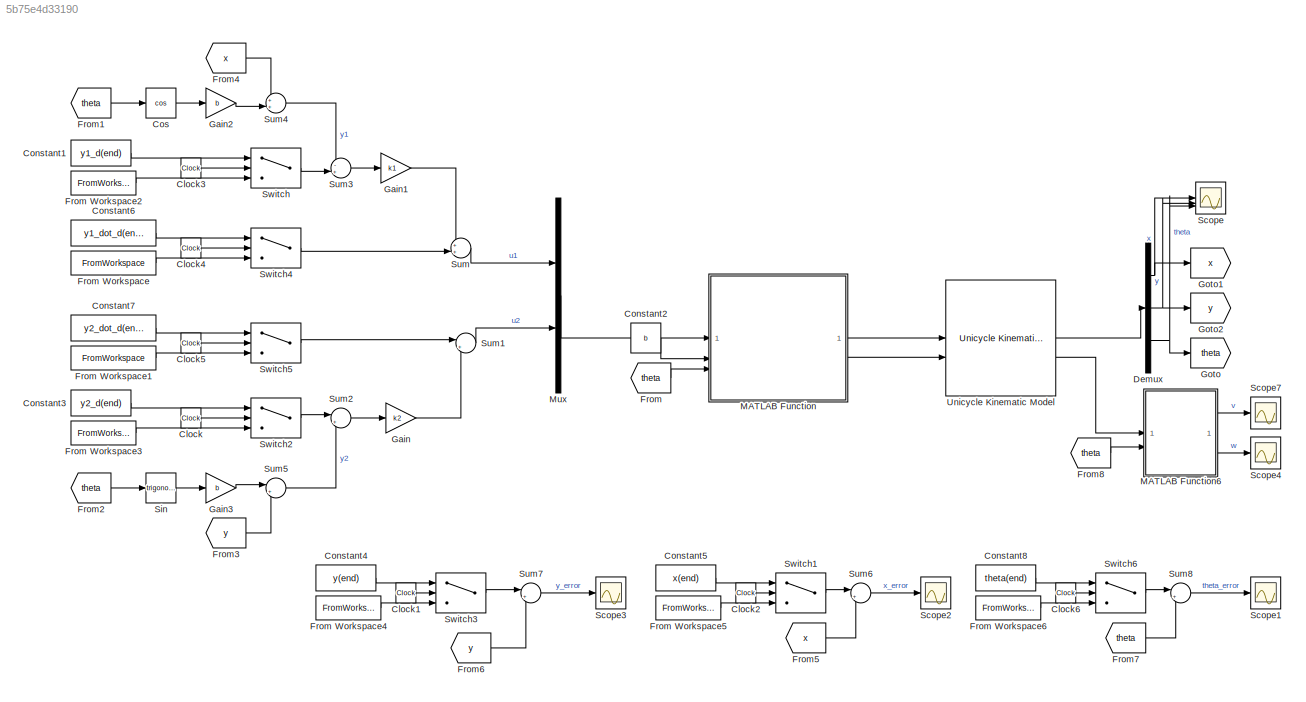
MODEL slx_5b75e4d33190
KIND model
CONFIG AbsTol = auto
CONFIG EnableMultiTasking = off
CONFIG FixedStep = 1/fs
CONFIG MaxStep = auto
CONFIG MinStep = auto
CONFIG RelTol = 1e-3
CONFIG SampleTimeConstraint = Unconstrained
CONFIG SolverName = FixedStepAuto
CONFIG StartTime = 0.0
CONFIG StopTime = 20
BLOCK [Clock] Clock
BLOCK [Clock] Clock1
BLOCK [Clock] Clock2
BLOCK [Clock] Clock3
BLOCK [Clock] Clock4
BLOCK [Clock] Clock5
BLOCK [Clock] Clock6
BLOCK [Constant] Constant1
  Value = y1_d(end)
BLOCK [Constant] Constant2
  Value = b
BLOCK [Constant] Constant3
  Value = y2_d(end)
BLOCK [Constant] Constant4
  Value = y(end)
BLOCK [Constant] Constant5
  Value = x(end)
BLOCK [Constant] Constant6
  Value = y1_dot_d(end)
BLOCK [Constant] Constant7
  Value = y2_dot_d(end)
BLOCK [Constant] Constant8
  Value = theta(end)
BLOCK [Trigonometry] Cos
  Operator = cos
BLOCK [Demux] Demux
  Outputs = 3
BLOCK [From] From
  GotoTag = theta
BLOCK [FromWorkspace] From Workspace
  VariableName = y1_dot_des
BLOCK [FromWorkspace] From Workspace1
  VariableName = y2_dot_des
BLOCK [FromWorkspace] From Workspace2
  VariableName = y1_des
BLOCK [FromWorkspace] From Workspace3
  VariableName = y2_des
BLOCK [FromWorkspace] From Workspace4
  VariableName = y_des
BLOCK [FromWorkspace] From Workspace5
  VariableName = x_des
BLOCK [FromWorkspace] From Workspace6
  VariableName = theta_des
BLOCK [From] From1
  GotoTag = theta
BLOCK [From] From2
  GotoTag = theta
BLOCK [From] From3
  GotoTag = y
BLOCK [From] From4
  GotoTag = x
BLOCK [From] From5
  GotoTag = x
BLOCK [From] From6
  GotoTag = y
BLOCK [From] From7
  GotoTag = theta
BLOCK [From] From8
  GotoTag = theta
BLOCK [Gain] Gain
  Gain = k2
BLOCK [Gain] Gain1
  Gain = k1
BLOCK [Gain] Gain2
  Gain = b
BLOCK [Gain] Gain3
  Gain = b
BLOCK [Goto] Goto
  GotoTag = theta
BLOCK [Goto] Goto1
  GotoTag = x
BLOCK [Goto] Goto2
  GotoTag = y
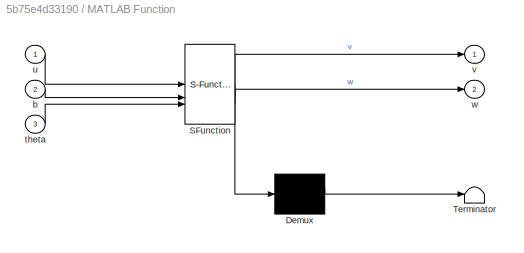
BLOCK [SubSystem] MATLAB Function
  ErrorFcn = Stateflow.Translate.translate
  PermitHierarchicalResolution = ExplicitOnly
  SFBlockType = MATLAB Function
  TreatAsAtomicUnit = on
BLOCK [Demux] MATLAB Function/ Demux 
  Outputs = 1
BLOCK [S-Function] MATLAB Function/ SFunction 
  EnableBusSupport = on
  FunctionName = sf_sfun
  PortCounts = [3 3]
  SFcnIsStateOwnerBlock = off
  SFunctionDeploymentMode = off
  Tag = Stateflow S-Function 2
BLOCK [Terminator] MATLAB Function/ Terminator 
BLOCK [Inport] MATLAB Function/b
  Port = 2
BLOCK [Inport] MATLAB Function/theta
  Port = 3
BLOCK [Inport] MATLAB Function/u
BLOCK [Outport] MATLAB Function/v
BLOCK [Outport] MATLAB Function/w
  Port = 2
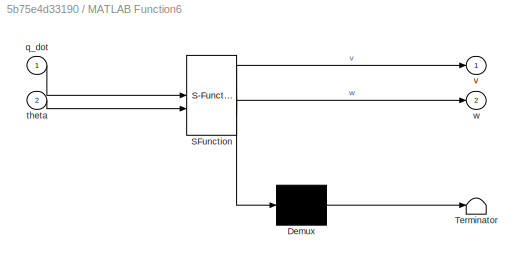
BLOCK [SubSystem] MATLAB Function6
  ErrorFcn = Stateflow.Translate.translate
  PermitHierarchicalResolution = ExplicitOnly
  SFBlockType = MATLAB Function
  TreatAsAtomicUnit = on
BLOCK [Demux] MATLAB Function6/ Demux 
  Outputs = 1
BLOCK [S-Function] MATLAB Function6/ SFunction 
  EnableBusSupport = on
  FunctionName = sf_sfun
  PortCounts = [2 3]
  SFcnIsStateOwnerBlock = off
  SFunctionDeploymentMode = off
  Tag = Stateflow S-Function 7
BLOCK [Terminator] MATLAB Function6/ Terminator 
BLOCK [Inport] MATLAB Function6/q_dot
BLOCK [Inport] MATLAB Function6/theta
  Port = 2
BLOCK [Outport] MATLAB Function6/v
BLOCK [Outport] MATLAB Function6/w
  Port = 2
BLOCK [Mux] Mux
  DisplayOption = bar
  Inputs = 2
BLOCK [Scope] Scope
  Floating = off
  NumInputPorts = 3
  ScopeSpecificationString = Simulink.scopes.TimeScopeBlockCfg('CurrentConfiguration', extmgr.ConfigurationSet(extmgr.Configuration('Core','General UI',true),extmgr.Configuration('Core','Source UI',true),extmgr.Configuration('Sources','WiredSimulink',true),extmgr.Configuration('Visuals','Time Domain',true,'SerializedDisplays',{struct('MinYLimReal','-0.14849','MaxYLimReal','1.33637','YLabelReal','','MinYLimMag','0.00000','MaxY...<+1447ch>
BLOCK [Scope] Scope1
  Floating = off
  NumInputPorts = 1
  ScopeSpecificationString = Simulink.scopes.TimeScopeBlockCfg('CurrentConfiguration', extmgr.ConfigurationSet(extmgr.Configuration('Core','General UI',true),extmgr.Configuration('Core','Source UI',true),extmgr.Configuration('Sources','WiredSimulink',true,'DataLoggingVariableName','ScopeData1'),extmgr.Configuration('Visuals','Time Domain',true,'SerializedDisplays',{struct('MinYLimReal','-0.00351','MaxYLimReal','0.00249','YLab...<+1510ch>
BLOCK [Scope] Scope2
  Floating = off
  NumInputPorts = 1
  ScopeSpecificationString = Simulink.scopes.TimeScopeBlockCfg('CurrentConfiguration', extmgr.ConfigurationSet(extmgr.Configuration('Core','General UI',true),extmgr.Configuration('Core','Source UI',true),extmgr.Configuration('Sources','WiredSimulink',true,'DataLoggingVariableName','ScopeData1'),extmgr.Configuration('Visuals','Time Domain',true,'SerializedDisplays',{struct('MinYLimReal','-0.00003','MaxYLimReal','0.0002','YLabe...<+1502ch>
BLOCK [Scope] Scope3
  Floating = off
  NumInputPorts = 1
  ScopeSpecificationString = Simulink.scopes.TimeScopeBlockCfg('CurrentConfiguration', extmgr.ConfigurationSet(extmgr.Configuration('Core','General UI',true),extmgr.Configuration('Core','Source UI',true),extmgr.Configuration('Sources','WiredSimulink',true,'DataLoggingVariableName','ScopeData1'),extmgr.Configuration('Visuals','Time Domain',true,'SerializedDisplays',{struct('MinYLimReal','-0.00004','MaxYLimReal','0.00033','YLab...<+1499ch>
BLOCK [Scope] Scope4
  Floating = off
  NumInputPorts = 1
  ScopeSpecificationString = Simulink.scopes.TimeScopeBlockCfg('CurrentConfiguration', extmgr.ConfigurationSet(extmgr.Configuration('Core','General UI',true),extmgr.Configuration('Core','Source UI',true),extmgr.Configuration('Sources','WiredSimulink',true,'DataLoggingVariableName','ScopeData1'),extmgr.Configuration('Visuals','Time Domain',true,'SerializedDisplays',{struct('MinYLimReal','-0.68613','MaxYLimReal','1.03412','YLab...<+1474ch>
BLOCK [Scope] Scope7
  Floating = off
  NumInputPorts = 1
  ScopeSpecificationString = Simulink.scopes.TimeScopeBlockCfg('CurrentConfiguration', extmgr.ConfigurationSet(extmgr.Configuration('Core','General UI',true),extmgr.Configuration('Core','Source UI',true),extmgr.Configuration('Sources','WiredSimulink',true,'DataLoggingVariableName','ScopeData4'),extmgr.Configuration('Visuals','Time Domain',true,'SerializedDisplays',{struct('MinYLimReal','-0.00000000045','MaxYLimReal','0.000000...<+1522ch>
BLOCK [Trigonometry] Sin
BLOCK [Sum] Sum
  Inputs = ++|
BLOCK [Sum] Sum1
  Inputs = |++
BLOCK [Sum] Sum2
  Inputs = |+-
BLOCK [Sum] Sum3
  Inputs = -+|
BLOCK [Sum] Sum4
  Inputs = ++|
BLOCK [Sum] Sum5
  Inputs = |++
BLOCK [Sum] Sum6
  Inputs = |+-
BLOCK [Sum] Sum7
  Inputs = |+-
BLOCK [Sum] Sum8
  Inputs = |+-
BLOCK [Switch] Switch
  Criteria = u2 > Threshold
  InputSameDT = off
  SaturateOnIntegerOverflow = off
  Threshold = t-1/fs
BLOCK [Switch] Switch1
  Criteria = u2 > Threshold
  InputSameDT = off
  SaturateOnIntegerOverflow = off
  Threshold = t-1/fs
BLOCK [Switch] Switch2
  Criteria = u2 > Threshold
  InputSameDT = off
  SaturateOnIntegerOverflow = off
  Threshold = t-1/fs
BLOCK [Switch] Switch3
  Criteria = u2 > Threshold
  InputSameDT = off
  SaturateOnIntegerOverflow = off
  Threshold = t-1/fs
BLOCK [Switch] Switch4
  Criteria = u2 > Threshold
  InputSameDT = off
  SaturateOnIntegerOverflow = off
  Threshold = t-1/fs
BLOCK [Switch] Switch5
  Criteria = u2 > Threshold
  InputSameDT = off
  SaturateOnIntegerOverflow = off
  Threshold = t-1/fs
BLOCK [Switch] Switch6
  Criteria = u2 > Threshold
  InputSameDT = off
  SaturateOnIntegerOverflow = off
  Threshold = t-1/fs
BLOCK [Reference] Unicycle Kinematic Model  REF=robotmobilelib/Unicycle Kinematic Model
  SourceBlock = robotmobilelib/Unicycle Kinematic Model
  SourceType = Unicycle Kinematic Model
LINE Clock1:1 -> Switch3:2
LINE Clock2:1 -> Switch1:2
LINE Clock3:1 -> Switch:2
LINE Clock4:1 -> Switch4:2
LINE Clock5:1 -> Switch5:2
LINE Clock6:1 -> Switch6:2
LINE Clock:1 -> Switch2:2
LINE Constant1:1 -> Switch:1
LINE Constant2:1 -> MATLAB Function:2
LINE Constant3:1 -> Switch2:1
LINE Constant4:1 -> Switch3:1
LINE Constant5:1 -> Switch1:1
LINE Constant6:1 -> Switch4:1
LINE Constant7:1 -> Switch5:1
LINE Constant8:1 -> Switch6:1
LINE Cos:1 -> Gain2:1
NET Demux:1 -> Goto1:1, Scope:1
NET Demux:2 -> Goto2:1, Scope:2
NET Demux:3 -> Goto:1, Scope:3
LINE From Workspace1:1 -> Switch5:3
LINE From Workspace2:1 -> Switch:3
LINE From Workspace3:1 -> Switch2:3
LINE From Workspace4:1 -> Switch3:3
LINE From Workspace5:1 -> Switch1:3
LINE From Workspace6:1 -> Switch6:3
LINE From Workspace:1 -> Switch4:3
LINE From1:1 -> Cos:1
LINE From2:1 -> Sin:1
LINE From3:1 -> Sum5:2
LINE From4:1 -> Sum4:1
LINE From5:1 -> Sum6:2
LINE From6:1 -> Sum7:2
LINE From7:1 -> Sum8:2
LINE From8:1 -> MATLAB Function6:2
LINE From:1 -> MATLAB Function:3
LINE Gain1:1 -> Sum:1
LINE Gain2:1 -> Sum4:2
LINE Gain3:1 -> Sum5:1
LINE Gain:1 -> Sum1:2
LINE MATLAB Function6:1 -> Scope7:1
LINE MATLAB Function6:2 -> Scope4:1
LINE MATLAB Function:1 -> Unicycle Kinematic Model:1
LINE MATLAB Function:2 -> Unicycle Kinematic Model:2
LINE Mux:1 -> MATLAB Function:1
LINE Sin:1 -> Gain3:1
LINE Sum1:1 -> Mux:2
LINE Sum2:1 -> Gain:1
LINE Sum3:1 -> Gain1:1
LINE Sum4:1 -> Sum3:1
LINE Sum5:1 -> Sum2:2
LINE Sum6:1 -> Scope2:1
LINE Sum7:1 -> Scope3:1
LINE Sum8:1 -> Scope1:1
LINE Sum:1 -> Mux:1
LINE Switch1:1 -> Sum6:1
LINE Switch2:1 -> Sum2:1
LINE Switch3:1 -> Sum7:1
LINE Switch4:1 -> Sum:2
LINE Switch5:1 -> Sum1:1
LINE Switch6:1 -> Sum8:1
LINE Switch:1 -> Sum3:2
LINE Unicycle Kinematic Model:1 -> Demux:1
LINE Unicycle Kinematic Model:2 -> MATLAB Function6:1
note: NET lines group one-source signal fan-out (src -> all destinations, sorted); 1:1 wires keep LINE
CHART MATLAB Function states=1 transitions=1
  STATE_LABEL 'eML_blk_kernel()'
  STATE_LABEL 'SCRIPT:\nfunction [v,w] = fcn(u, b, theta)\nT = [cos(theta) -b*sin(theta);\n     sin(theta) b*cos(theta)];\nsol = inv(T)*u;\nv = sol(1);\nw = sol(2);\n'
CHART MATLAB Function6 states=1 transitions=1
  STATE_LABEL 'eML_blk_kernel()'
  STATE_LABEL 'SCRIPT:\nfunction [v,w] = fcn(q_dot,theta)\nv= q_dot(1)/cos(theta);\nw= q_dot(3);'
CHART  states=0 transitions=0
CHART  states=0 transitions=0
